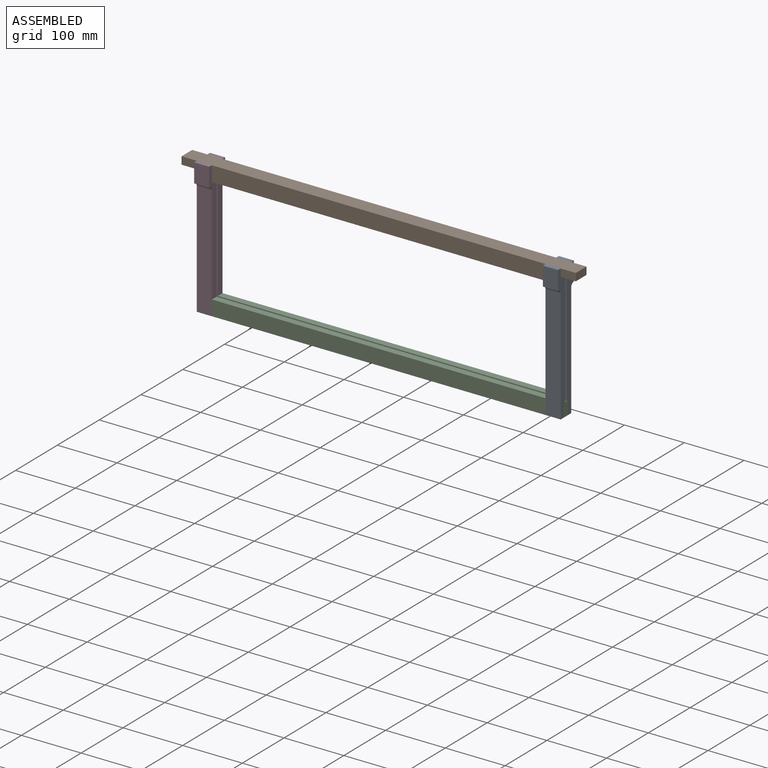
[diagram: assembled view]
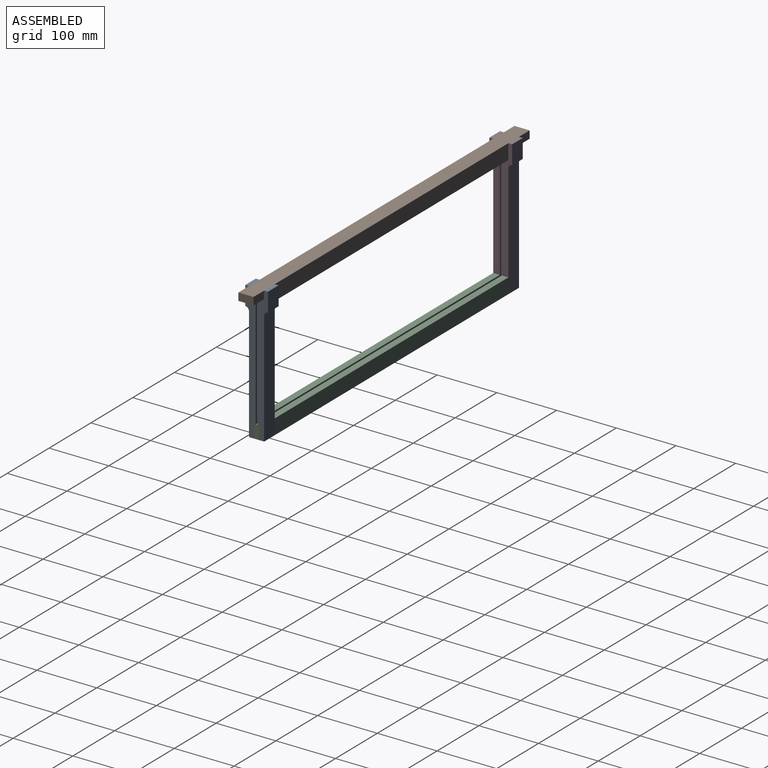
[diagram: assembled view, second angle]
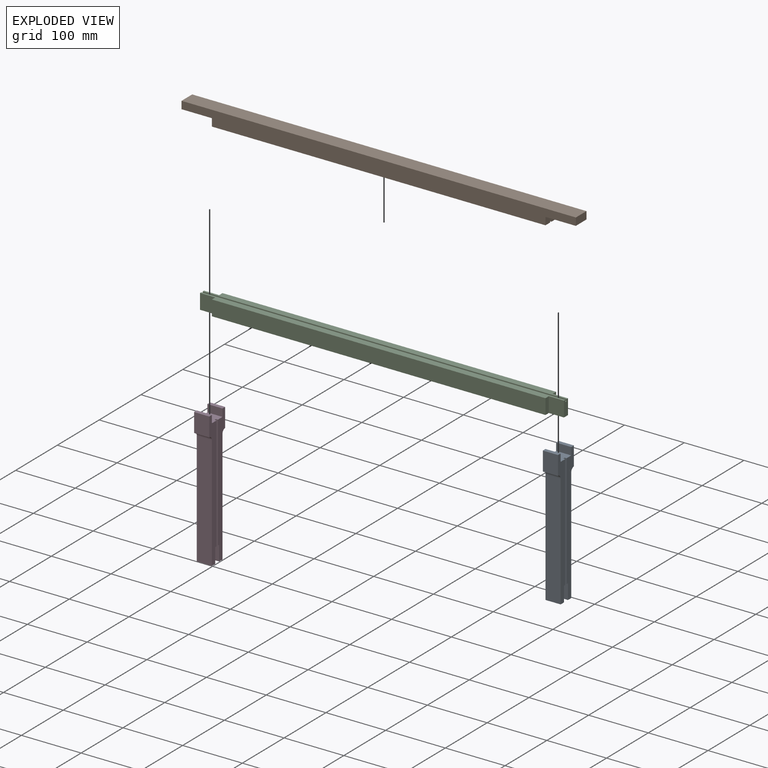
[diagram: exploded view]
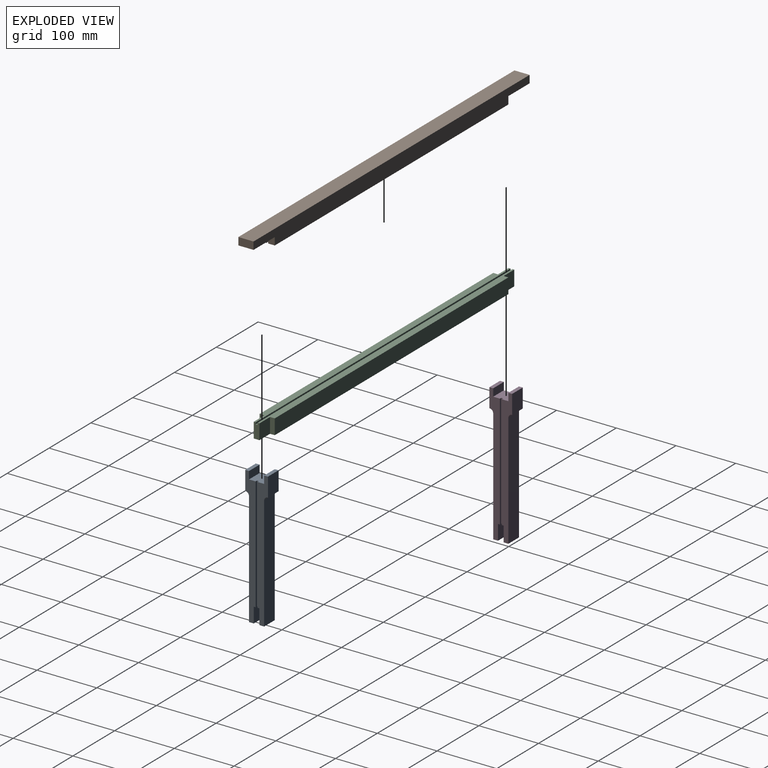
[diagram: exploded view, second angle]
ASSEMBLY  parts=4 mates=3
PART A: 26 faces, bbox 25.4x38.1x228.6 mm
  f0: plane 228.6x17.46mm, normal (1,0,0), area 2528.8mm2, adj f1,f2,f5,f9,f11,f12,f14,f15
  f1: plane 25.4x25.4mm, normal (0,0,1), area 625mm2, adj f0,f3,f6,f7,f12,f13,f20,f21
  f2: plane 25.4x9.53mm, normal (0,0,-1), area 221.8mm2, adj f0,f3,f6,f7,f18,f19,f20,f21
  f3: plane 228.6x17.46mm, normal (-1,0,0), area 2528.8mm2, adj f1,f2,f5,f9,f11,f12,f14,f15
  f4: plane 25.4x7.94mm, normal (0,0,-1), area 201.6mm2, adj f6,f7,f17,f18
  f5: plane 25.4x7.94mm, normal (0,0,-1), area 201.6mm2, adj f0,f3,f14,f19
  f6: plane 228.6x17.46mm, normal (-1,0,0), area 2528.8mm2, adj f1,f2,f4,f8,f10,f13,f16,f17
  f7: plane 228.6x17.46mm, normal (1,0,0), area 2528.8mm2, adj f1,f2,f4,f8,f10,f13,f16,f17
  f8: plane 25.4x6.35mm, normal (0,0,1), area 161.3mm2, adj f6,f7,f10,f13
  f9: plane 25.4x6.35mm, normal (0,0,1), area 161.3mm2, adj f0,f3,f11,f12
  f10: plane 31.75x25.4mm, normal (0,-1,0), area 806.4mm2, adj f6,f7,f8,f16
  f11: plane 31.75x25.4mm, normal (0,1,0), area 806.4mm2, adj f0,f3,f9,f15
  f12: plane 25.4x12.7mm, normal (0,-1,0), area 322.6mm2, adj f0,f1,f3,f9
  f13: plane 25.4x12.7mm, normal (0,1,0), area 322.6mm2, adj f1,f6,f7,f8
  f14: plane 190.5x25.4mm, normal (0,1,0), area 4838.7mm2, adj f0,f3,f5,f15
  f15: cylinder r=6.35mm len=25.4mm, axis (-1,0,0), area 253.4mm2, adj f0,f3,f11,f14
  f16: cylinder r=6.35mm len=25.4mm, axis (-1,0,0), area 253.4mm2, adj f6,f7,f10,f17
  f17: plane 190.5x25.4mm, normal (0,-1,0), area 4838.7mm2, adj f4,f6,f7,f16
  f18: plane 25.4x25.4mm, normal (0,1,0), area 645.2mm2, adj f2,f4,f6,f7
  f19: plane 25.4x25.4mm, normal (0,-1,0), area 645.2mm2, adj f0,f2,f3,f5
  f20: plane 190.5x3.18mm, normal (0,-1,0), area 604.8mm2, adj f1,f2,f3,f22
  f21: plane 190.5x3.18mm, normal (0,1,0), area 604.8mm2, adj f1,f2,f6,f22
  f22: plane 190.5x3.18mm, normal (-1,0,0), area 604.8mm2, adj f1,f2,f20,f21
  f23: plane 190.5x3.18mm, normal (0,1,0), area 604.8mm2, adj f1,f2,f7,f25
  f24: plane 190.5x3.18mm, normal (0,-1,0), area 604.8mm2, adj f0,f1,f2,f25
  f25: plane 190.5x3.18mm, normal (1,0,0), area 604.8mm2, adj f1,f2,f23,f24
PART B: 14 faces, bbox 660.4x25.4x25.4 mm
  f0: plane 558.8x11.11mm, normal (0,0,-1), area 6209.7mm2, adj f1,f4,f9,f11
  f1: plane 25.4x12.7mm, normal (1,0,0), area 312.5mm2, adj f0,f2,f3,f4,f8,f11,f12,f13
  f2: plane 558.8x11.11mm, normal (0,0,-1), area 6209.7mm2, adj f1,f3,f9,f12
  f3: plane 660.4x25.4mm, normal (0,-1,0), area 15483.8mm2, adj f1,f2,f5,f6,f7,f8,f9,f10
  f4: plane 660.4x25.4mm, normal (0,1,0), area 15483.8mm2, adj f0,f1,f5,f6,f7,f8,f9,f10
  f5: plane 25.4x12.7mm, normal (-1,0,0), area 322.6mm2, adj f3,f4,f7,f10
  f6: plane 25.4x12.7mm, normal (1,0,0), area 322.6mm2, adj f3,f4,f7,f8
  f7: plane 660.4x25.4mm, normal (0,0,1), area 16774.2mm2, adj f3,f4,f5,f6
  f8: plane 50.8x25.4mm, normal (0,0,-1), area 1290.3mm2, adj f1,f3,f4,f6
  f9: plane 25.4x12.7mm, normal (-1,0,0), area 312.5mm2, adj f0,f2,f3,f4,f10,f11,f12,f13
  f10: plane 50.8x25.4mm, normal (0,0,-1), area 1290.3mm2, adj f3,f4,f5,f9
  f11: plane 558.8x3.18mm, normal (0,-1,0), area 1774.2mm2, adj f0,f1,f9,f13
  f12: plane 558.8x3.18mm, normal (0,1,0), area 1774.2mm2, adj f1,f2,f9,f13
  f13: plane 558.8x3.18mm, normal (0,0,-1), area 1774.2mm2, adj f1,f9,f11,f12
PART C: 18 faces, bbox 609.6x25.4x25.4 mm
  f0: plane 25.4x7.94mm, normal (1,0,0), area 201.6mm2, adj f4,f5,f7,f15
  f1: plane 25.4x7.94mm, normal (-1,0,0), area 201.6mm2, adj f4,f5,f7,f13
  f2: plane 609.6x11.11mm, normal (0,0,1), area 6371mm2, adj f3,f6,f8,f10,f12,f14,f16,f17
  f3: plane 25.4x7.94mm, normal (1,0,0), area 201.6mm2, adj f2,f4,f8,f16
  f4: plane 609.6x25.4mm, normal (0,0,-1), area 14677.4mm2, adj f0,f1,f3,f6,f7,f8,f12,f13
  f5: plane 609.6x11.11mm, normal (0,0,1), area 6371mm2, adj f0,f1,f7,f9,f13,f14,f15,f17
  f6: plane 25.4x7.94mm, normal (-1,0,0), area 201.6mm2, adj f2,f4,f8,f12
  f7: plane 558.8x25.4mm, normal (0,-1,0), area 14193.5mm2, adj f0,f1,f4,f5
  f8: plane 558.8x25.4mm, normal (0,1,0), area 14193.5mm2, adj f2,f3,f4,f6
  f9: plane 609.6x3.18mm, normal (0,1,0), area 1935.5mm2, adj f5,f11,f14,f17
  f10: plane 609.6x3.18mm, normal (0,-1,0), area 1935.5mm2, adj f2,f11,f14,f17
  f11: plane 609.6x3.18mm, normal (0,0,1), area 1935.5mm2, adj f9,f10,f14,f17
  f12: plane 25.4x25.4mm, normal (0,1,0), area 645.2mm2, adj f2,f4,f6,f14
  f13: plane 25.4x25.4mm, normal (0,-1,0), area 645.2mm2, adj f1,f4,f5,f14
  f14: plane 25.4x9.53mm, normal (-1,0,0), area 231.9mm2, adj f2,f4,f5,f9,f10,f11,f12,f13
  f15: plane 25.4x25.4mm, normal (0,-1,0), area 645.2mm2, adj f0,f4,f5,f17
  f16: plane 25.4x25.4mm, normal (0,1,0), area 645.2mm2, adj f2,f3,f4,f17
  f17: plane 25.4x9.53mm, normal (1,0,0), area 231.9mm2, adj f2,f4,f5,f9,f10,f11,f15,f16
PART D: same geometry as A
PLACE A t=(183,13.82,-18.14)mm
PLACE B t=(-109.1,7.47,83.46)mm
PLACE C t=(-109.1,7.47,-119.74)mm
PLACE D t=(-401.2,13.82,-18.14)mm
MATE planar D.f1 <-> B.f10  axis (0,0,1) through (-388.5,7.47,83.46)mm
MATE planar C.f2 <-> D.f2  axis (0,0,1) through (-388.5,-0.47,-107.04)mm
MATE planar A.f1 <-> B.f8  axis (0,0,1) through (170.3,7.47,83.46)mm
